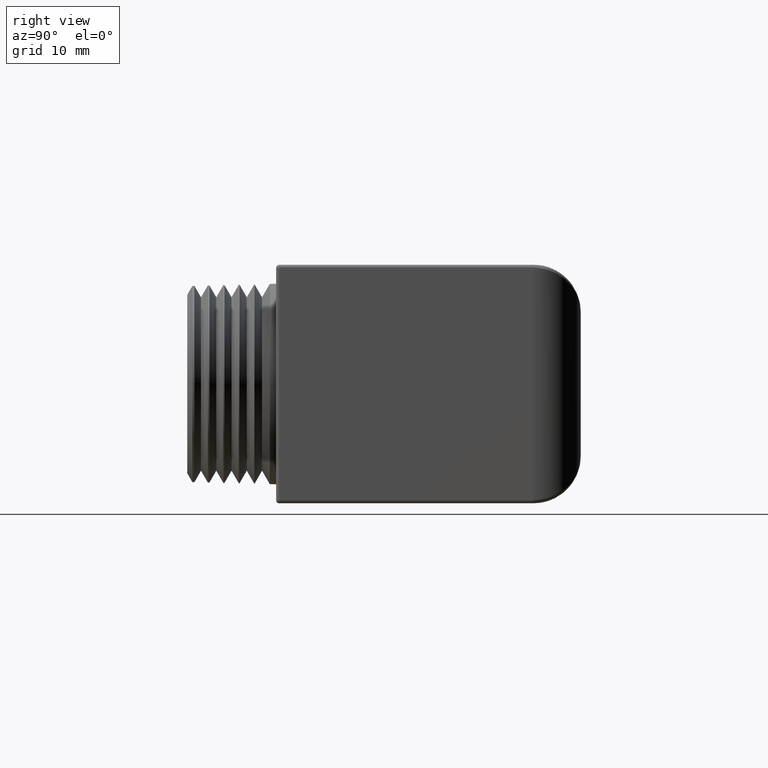
[diagram: clean part render]
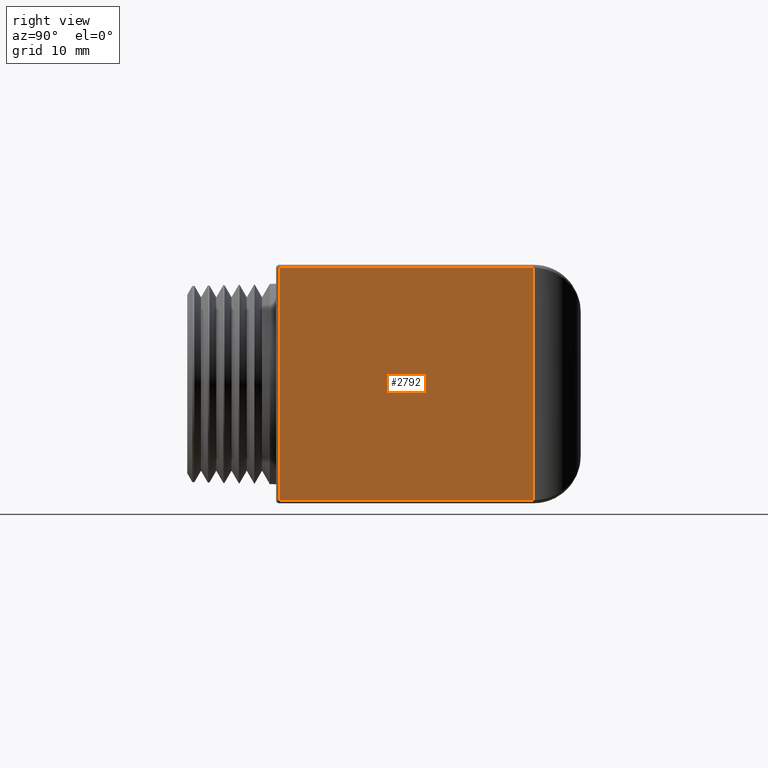
[diagram: same view with one face highlighted and labeled with its STEP entity id]
A machine part, right view. The second image highlights one B-rep face of the part: STEP entity #2792.
In plain terms, the highlighted planar face has unit normal (1, -0, 0).
Its self-contained STEP definition (entity closure, byte-faithful):
#484 = DIRECTION ( 'NONE',  ( 0.0000000000000000000, 0.0000000000000000000, -1.000000000000000000 ) ) ;
#485 = VECTOR ( 'NONE', #484, 39.37007874015748100 ) ;
#486 = CARTESIAN_POINT ( 'NONE',  ( 1.567999999999999800, -0.5873446327683615700, -2.444493352736341500 ) ) ;
#487 = LINE ( 'NONE', #486, #485 ) ;
#488 = CARTESIAN_POINT ( 'NONE',  ( 1.567999999999999800, -0.5873446327683615700, -0.4573446327683614600 ) ) ;
#581 = DIRECTION ( 'NONE',  ( -2.276539994720219800E-016, -1.000000000000000000, 0.0000000000000000000 ) ) ;
#582 = VECTOR ( 'NONE', #581, 39.37007874015748100 ) ;
#583 = CARTESIAN_POINT ( 'NONE',  ( 1.567999999999999800, -0.5999999999999998700, 0.4573446327683613500 ) ) ;
#584 = LINE ( 'NONE', #583, #582 ) ;
#585 = CARTESIAN_POINT ( 'NONE',  ( 1.568000000000000100, 0.4133333333333332200, 0.4573446327683613500 ) ) ;
#586 = DIRECTION ( 'NONE',  ( 0.0000000000000000000, 0.0000000000000000000, 1.000000000000000000 ) ) ;
#587 = VECTOR ( 'NONE', #586, 39.37007874015748100 ) ;
#588 = CARTESIAN_POINT ( 'NONE',  ( 1.568000000000000100, 0.4133333333333332200, 0.4699999999999999200 ) ) ;
#592 = LINE ( 'NONE', #588, #587 ) ;
#891 = CARTESIAN_POINT ( 'NONE',  ( 1.567999999999999800, -0.5873446327683615700, 0.4573446327683613500 ) ) ;
#1067 = CARTESIAN_POINT ( 'NONE',  ( 1.568000000000000100, 0.4133333333333332200, -0.4573446327683614600 ) ) ;
#1068 = DIRECTION ( 'NONE',  ( 2.276539994720219800E-016, 1.000000000000000000, 0.0000000000000000000 ) ) ;
#1077 = VECTOR ( 'NONE', #1068, 39.37007874015748100 ) ;
#1078 = CARTESIAN_POINT ( 'NONE',  ( 1.568000000000000100, 0.4133333333333332200, -0.4573446327683614600 ) ) ;
#1079 = DIRECTION ( 'NONE',  ( 2.276539994720219800E-016, 1.000000000000000000, 0.0000000000000000000 ) ) ;
#1080 = PLANE ( 'NONE',  #1103 ) ;
#1101 = DIRECTION ( 'NONE',  ( 1.000000000000000000, -2.276539994720219800E-016, 0.0000000000000000000 ) ) ;
#1102 = CARTESIAN_POINT ( 'NONE',  ( 1.568000000000000100, 0.5999999999999998700, -2.444493352736341500 ) ) ;
#1103 = AXIS2_PLACEMENT_3D ( 'NONE', #1102, #1101, #1079 ) ;
#1104 = LINE ( 'NONE', #1078, #1077 ) ;
#1132 = FACE_OUTER_BOUND ( 'NONE', #2793, .T. ) ;
#2517 = EDGE_CURVE ( 'NONE', #2797, #2518, #592, .T. ) ;
#2518 = VERTEX_POINT ( 'NONE', #585 ) ;
#2519 = ORIENTED_EDGE ( 'NONE', *, *, #2520, .T. ) ;
#2520 = EDGE_CURVE ( 'NONE', #2518, #2641, #584, .T. ) ;
#2541 = VERTEX_POINT ( 'NONE', #488 ) ;
#2543 = EDGE_CURVE ( 'NONE', #2641, #2541, #487, .T. ) ;
#2641 = VERTEX_POINT ( 'NONE', #891 ) ;
#2792 = ADVANCED_FACE ( 'NONE', ( #1132 ), #1080, .T. ) ;
#2793 = EDGE_LOOP ( 'NONE', ( #2794, #2795, #2798, #2519 ) ) ;
#2794 = ORIENTED_EDGE ( 'NONE', *, *, #2543, .T. ) ;
#2795 = ORIENTED_EDGE ( 'NONE', *, *, #2796, .T. ) ;
#2796 = EDGE_CURVE ( 'NONE', #2541, #2797, #1104, .T. ) ;
#2797 = VERTEX_POINT ( 'NONE', #1067 ) ;
#2798 = ORIENTED_EDGE ( 'NONE', *, *, #2517, .T. ) ;